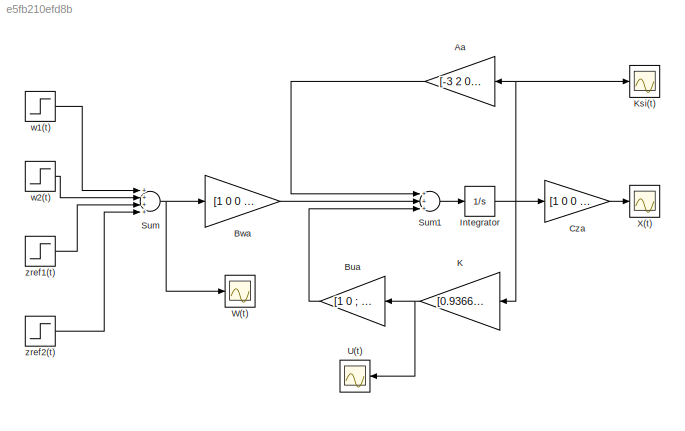
MODEL slx_e5fb210efd8b
KIND model
BLOCK [Gain] Aa
  Gain = [-3 2 0 0 ; 4 -5 0 0 ; 1 0 0 0 ; 0 1 0 0]
  Multiplication = Matrix(K*u) (u vector)
  OutDataTypeStr = Inherit: Inherit via internal rule
  ParamDataTypeStr = Inherit: Inherit via internal rule
  SaturateOnIntegerOverflow = off
BLOCK [Gain] Bua
  Gain = [1 0 ; 0 1 ; 0 0 ; 0 0]
  Multiplication = Matrix(K*u) (u vector)
  OutDataTypeStr = Inherit: Inherit via internal rule
  ParamDataTypeStr = Inherit: Inherit via internal rule
  SaturateOnIntegerOverflow = off
BLOCK [Gain] Bwa
  Gain = [1 0 0 0 ; 0 1 0 0 ; 0 0 -1 0 ; 0 0 0 -1]
  Multiplication = Matrix(K*u) (u vector)
  OutDataTypeStr = Inherit: Inherit via internal rule
  ParamDataTypeStr = Inherit: Inherit via internal rule
  SaturateOnIntegerOverflow = off
BLOCK [Gain] Cza
  Gain = [1 0 0 0 ; 0 1 0 0 ]
  Multiplication = Matrix(K*u) (u vector)
  OutDataTypeStr = Inherit: Inherit via internal rule
  ParamDataTypeStr = Inherit: Inherit via internal rule
  SaturateOnIntegerOverflow = off
BLOCK [Integrator] Integrator
  Ports = [1, 1]
BLOCK [Gain] K
  Gain = [0.9366 0.7018 -0.6587 0.8625; -6.7018 2.9366 -0.8625 -0.6587]
  Multiplication = Matrix(K*u) (u vector)
  OutDataTypeStr = Inherit: Inherit via internal rule
  ParamDataTypeStr = Inherit: Inherit via internal rule
  SaturateOnIntegerOverflow = off
BLOCK [Scope] Ksi(t)
  DataFormat = StructureWithTime
  Floating = off
  LimitDataPoints = off
  NumInputPorts = 1
  Ports = [1]
  SampleTime = 0
  SaveName = ScopeData3
  ShowLegends = off
BLOCK [Sum] Sum
  InputSameDT = off
  Inputs = ++++
  OutDataTypeStr = Inherit: Inherit via internal rule
  Ports = [4, 1]
  SaturateOnIntegerOverflow = off
BLOCK [Sum] Sum1
  InputSameDT = off
  Inputs = +++
  OutDataTypeStr = Inherit: Inherit via internal rule
  Ports = [3, 1]
  SaturateOnIntegerOverflow = off
BLOCK [Scope] U(t)
  DataFormat = StructureWithTime
  Floating = off
  LimitDataPoints = off
  NumInputPorts = 1
  Ports = [1]
  SampleTime = 0
  SaveName = ScopeData2
  ShowLegends = off
BLOCK [Scope] W(t)
  DataFormat = StructureWithTime
  Floating = off
  LimitDataPoints = off
  NumInputPorts = 1
  Ports = [1]
  SampleTime = 0
  SaveName = ScopeData1
  ShowLegends = off
  TimeRange = 200
  YMax = 1000
  YMin = -4000
BLOCK [Scope] X(t)
  DataFormat = StructureWithTime
  Floating = off
  LimitDataPoints = off
  NumInputPorts = 1
  Ports = [1]
  SampleTime = 0
  ShowLegends = off
BLOCK [Step] w1(t)
  After = [2; 0; 0; 0]
  Before = [1; 0; 0; 0]
  SampleTime = 0
  Time = 125
BLOCK [Step] w2(t)
  After = [0; 3; 0; 0]
  Before = [0; 2; 0; 0]
  SampleTime = 0
  Time = 100
BLOCK [Step] zref1(t)
  After = [0; 0; 6; 0]
  Before = [0; 0; 4; 0]
  SampleTime = 0
  Time = 75
BLOCK [Step] zref2(t)
  After = [0; 0; 0; 8]
  Before = [0; 0; 0; 5]
  SampleTime = 0
  Time = 50
LINE Aa:1 -> Sum1:1
LINE Bua:1 -> Sum1:3
LINE Bwa:1 -> Sum1:2
LINE Cza:1 -> X(t):1
NET Integrator:1 -> Aa:1, Cza:1, K:1, Ksi(t):1
NET K:1 -> Bua:1, U(t):1
LINE Sum1:1 -> Integrator:1
NET Sum:1 -> Bwa:1, W(t):1
LINE w1(t):1 -> Sum:1
LINE w2(t):1 -> Sum:2
LINE zref1(t):1 -> Sum:3
LINE zref2(t):1 -> Sum:4
note: NET lines group one-source signal fan-out (src -> all destinations, sorted); 1:1 wires keep LINE
